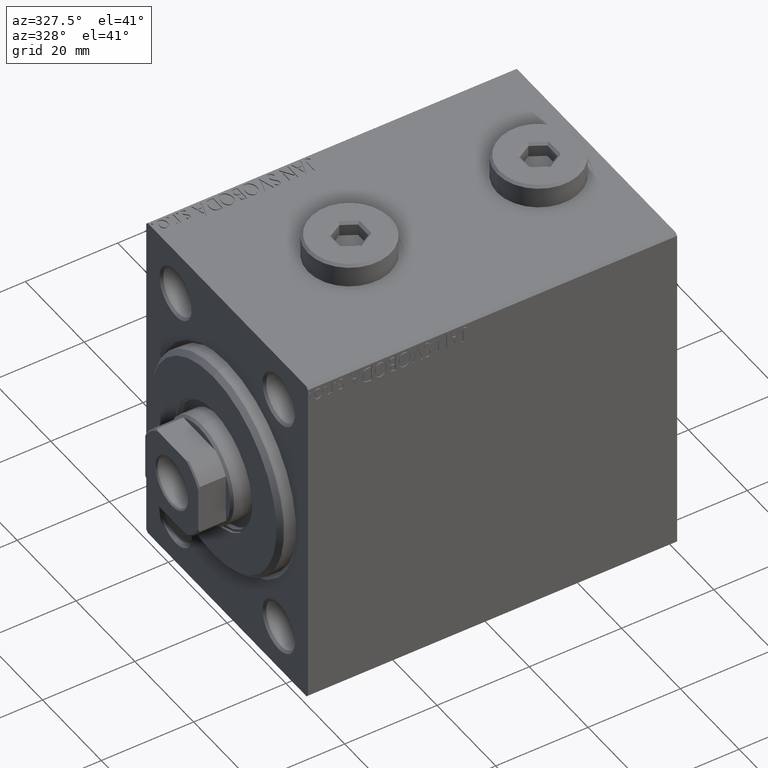
[diagram: clean part render]
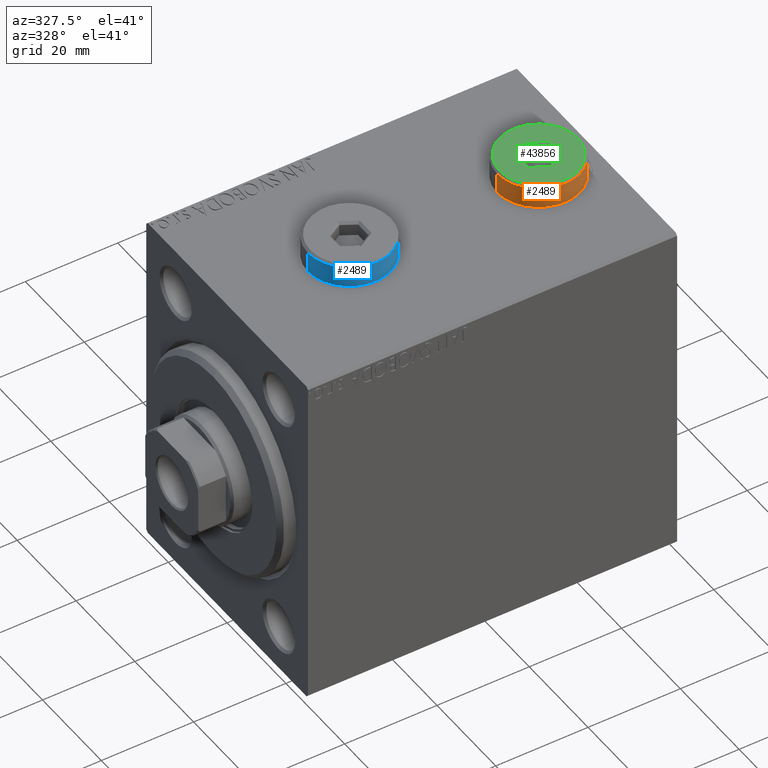
[diagram: same view with three faces highlighted in distinct colors, each labeled with its STEP entity id]
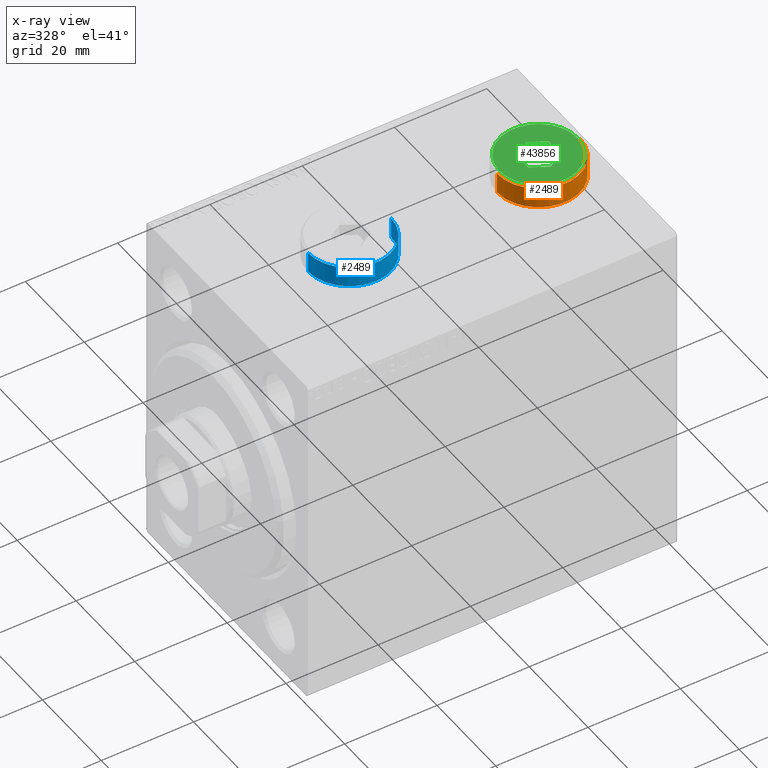
[diagram: x-ray of the same camera — body ghosted, the three highlighted faces saturated]
A machine part, auxiliary view with three faces highlighted in distinct colors.
The next image is the same camera in x-ray (body ghosted, the three faces saturated) — at least one of them is partly hidden behind the body in this view.
Their STEP definitions:

[orange] entity #2489 — the highlighted cylindrical surface (partial cylindrical patch) has radius 9 mm, axis along (-0, -0, -1).
#2489 = ADVANCED_FACE ( 'NONE', ( #18412 ), #3678, .T. ) ;
#2507 = LINE ( 'NONE', #44441, #35824 ) ;
#3678 = CYLINDRICAL_SURFACE ( 'NONE', #12824, 9.000000000000001776 ) ;
#3927 = DIRECTION ( 'NONE',  ( -0.000000000000000000, -0.000000000000000000, -1.000000000000000000 ) ) ;
#4153 = CARTESIAN_POINT ( 'NONE',  ( 0.000000000000000000, 0.000000000000000000, 4.500000000000006217 ) ) ;
#4491 = ORIENTED_EDGE ( 'NONE', *, *, #12279, .F. ) ;
#9756 = CARTESIAN_POINT ( 'NONE',  ( -9.000000000000001776, 0.000000000000000000, 4.500000000000006217 ) ) ;
#10621 = LINE ( 'NONE', #38980, #16836 ) ;
#12279 = EDGE_CURVE ( 'NONE', #29298, #26930, #2507, .T. ) ;
#12824 = AXIS2_PLACEMENT_3D ( 'NONE', #32462, #14949, #28988 ) ;
#14949 = DIRECTION ( 'NONE',  ( -0.000000000000000000, -0.000000000000000000, -1.000000000000000000 ) ) ;
#16563 = DIRECTION ( 'NONE',  ( -0.000000000000000000, -0.000000000000000000, -1.000000000000000000 ) ) ;
#16836 = VECTOR ( 'NONE', #3927, 1000.000000000000000 ) ;
#17232 = EDGE_CURVE ( 'NONE', #28300, #25426, #10621, .T. ) ;
#17346 = AXIS2_PLACEMENT_3D ( 'NONE', #33959, #41112, #43642 ) ;
#17738 = CARTESIAN_POINT ( 'NONE',  ( -9.000000000000001776, 0.000000000000000000, 0.000000000000000000 ) ) ;
#18209 = DIRECTION ( 'NONE',  ( 1.000000000000000000, 0.000000000000000000, 0.000000000000000000 ) ) ;
#18412 = FACE_OUTER_BOUND ( 'NONE', #31771, .T. ) ;
#21670 = ORIENTED_EDGE ( 'NONE', *, *, #34396, .T. ) ;
#23672 = ORIENTED_EDGE ( 'NONE', *, *, #17232, .T. ) ;
#25129 = DIRECTION ( 'NONE',  ( 0.000000000000000000, 0.000000000000000000, -1.000000000000000000 ) ) ;
#25426 = VERTEX_POINT ( 'NONE', #17738 ) ;
#26930 = VERTEX_POINT ( 'NONE', #44574 ) ;
#28300 = VERTEX_POINT ( 'NONE', #9756 ) ;
#28988 = DIRECTION ( 'NONE',  ( -1.000000000000000000, 0.000000000000000000, 0.000000000000000000 ) ) ;
#29298 = VERTEX_POINT ( 'NONE', #33728 ) ;
#29795 = EDGE_CURVE ( 'NONE', #29298, #28300, #31045, .T. ) ;
#31045 = CIRCLE ( 'NONE', #32485, 9.000000000000001776 ) ;
#31771 = EDGE_LOOP ( 'NONE', ( #4491, #43490, #23672, #21670 ) ) ;
#32462 = CARTESIAN_POINT ( 'NONE',  ( 0.000000000000000000, 0.000000000000000000, 5.000000000000000000 ) ) ;
#32485 = AXIS2_PLACEMENT_3D ( 'NONE', #4153, #25129, #18209 ) ;
#33728 = CARTESIAN_POINT ( 'NONE',  ( 9.000000000000001776, 1.102182119232617911E-15, 4.500000000000006217 ) ) ;
#33959 = CARTESIAN_POINT ( 'NONE',  ( 0.000000000000000000, 0.000000000000000000, 0.000000000000000000 ) ) ;
#34396 = EDGE_CURVE ( 'NONE', #25426, #26930, #37961, .T. ) ;
#35824 = VECTOR ( 'NONE', #16563, 1000.000000000000000 ) ;
#37961 = CIRCLE ( 'NONE', #17346, 9.000000000000001776 ) ;
#38980 = CARTESIAN_POINT ( 'NONE',  ( -9.000000000000001776, 0.000000000000000000, 5.000000000000000000 ) ) ;
#41112 = DIRECTION ( 'NONE',  ( 0.000000000000000000, 0.000000000000000000, 1.000000000000000000 ) ) ;
#43490 = ORIENTED_EDGE ( 'NONE', *, *, #29795, .T. ) ;
#43642 = DIRECTION ( 'NONE',  ( 1.000000000000000000, 0.000000000000000000, 0.000000000000000000 ) ) ;
#44441 = CARTESIAN_POINT ( 'NONE',  ( 9.000000000000001776, 1.102182119232617911E-15, 5.000000000000000000 ) ) ;
#44574 = CARTESIAN_POINT ( 'NONE',  ( 9.000000000000001776, 1.102182119232617911E-15, 0.000000000000000000 ) ) ;

[blue] entity #2489 — the highlighted cylindrical surface (partial cylindrical patch) has radius 9 mm, axis along (-0, -0, -1).
#2489 = ADVANCED_FACE ( 'NONE', ( #18412 ), #3678, .T. ) ;
#2507 = LINE ( 'NONE', #44441, #35824 ) ;
#3678 = CYLINDRICAL_SURFACE ( 'NONE', #12824, 9.000000000000001776 ) ;
#3927 = DIRECTION ( 'NONE',  ( -0.000000000000000000, -0.000000000000000000, -1.000000000000000000 ) ) ;
#4153 = CARTESIAN_POINT ( 'NONE',  ( 0.000000000000000000, 0.000000000000000000, 4.500000000000006217 ) ) ;
#4491 = ORIENTED_EDGE ( 'NONE', *, *, #12279, .F. ) ;
#9756 = CARTESIAN_POINT ( 'NONE',  ( -9.000000000000001776, 0.000000000000000000, 4.500000000000006217 ) ) ;
#10621 = LINE ( 'NONE', #38980, #16836 ) ;
#12279 = EDGE_CURVE ( 'NONE', #29298, #26930, #2507, .T. ) ;
#12824 = AXIS2_PLACEMENT_3D ( 'NONE', #32462, #14949, #28988 ) ;
#14949 = DIRECTION ( 'NONE',  ( -0.000000000000000000, -0.000000000000000000, -1.000000000000000000 ) ) ;
#16563 = DIRECTION ( 'NONE',  ( -0.000000000000000000, -0.000000000000000000, -1.000000000000000000 ) ) ;
#16836 = VECTOR ( 'NONE', #3927, 1000.000000000000000 ) ;
#17232 = EDGE_CURVE ( 'NONE', #28300, #25426, #10621, .T. ) ;
#17346 = AXIS2_PLACEMENT_3D ( 'NONE', #33959, #41112, #43642 ) ;
#17738 = CARTESIAN_POINT ( 'NONE',  ( -9.000000000000001776, 0.000000000000000000, 0.000000000000000000 ) ) ;
#18209 = DIRECTION ( 'NONE',  ( 1.000000000000000000, 0.000000000000000000, 0.000000000000000000 ) ) ;
#18412 = FACE_OUTER_BOUND ( 'NONE', #31771, .T. ) ;
#21670 = ORIENTED_EDGE ( 'NONE', *, *, #34396, .T. ) ;
#23672 = ORIENTED_EDGE ( 'NONE', *, *, #17232, .T. ) ;
#25129 = DIRECTION ( 'NONE',  ( 0.000000000000000000, 0.000000000000000000, -1.000000000000000000 ) ) ;
#25426 = VERTEX_POINT ( 'NONE', #17738 ) ;
#26930 = VERTEX_POINT ( 'NONE', #44574 ) ;
#28300 = VERTEX_POINT ( 'NONE', #9756 ) ;
#28988 = DIRECTION ( 'NONE',  ( -1.000000000000000000, 0.000000000000000000, 0.000000000000000000 ) ) ;
#29298 = VERTEX_POINT ( 'NONE', #33728 ) ;
#29795 = EDGE_CURVE ( 'NONE', #29298, #28300, #31045, .T. ) ;
#31045 = CIRCLE ( 'NONE', #32485, 9.000000000000001776 ) ;
#31771 = EDGE_LOOP ( 'NONE', ( #4491, #43490, #23672, #21670 ) ) ;
#32462 = CARTESIAN_POINT ( 'NONE',  ( 0.000000000000000000, 0.000000000000000000, 5.000000000000000000 ) ) ;
#32485 = AXIS2_PLACEMENT_3D ( 'NONE', #4153, #25129, #18209 ) ;
#33728 = CARTESIAN_POINT ( 'NONE',  ( 9.000000000000001776, 1.102182119232617911E-15, 4.500000000000006217 ) ) ;
#33959 = CARTESIAN_POINT ( 'NONE',  ( 0.000000000000000000, 0.000000000000000000, 0.000000000000000000 ) ) ;
#34396 = EDGE_CURVE ( 'NONE', #25426, #26930, #37961, .T. ) ;
#35824 = VECTOR ( 'NONE', #16563, 1000.000000000000000 ) ;
#37961 = CIRCLE ( 'NONE', #17346, 9.000000000000001776 ) ;
#38980 = CARTESIAN_POINT ( 'NONE',  ( -9.000000000000001776, 0.000000000000000000, 5.000000000000000000 ) ) ;
#41112 = DIRECTION ( 'NONE',  ( 0.000000000000000000, 0.000000000000000000, 1.000000000000000000 ) ) ;
#43490 = ORIENTED_EDGE ( 'NONE', *, *, #29795, .T. ) ;
#43642 = DIRECTION ( 'NONE',  ( 1.000000000000000000, 0.000000000000000000, 0.000000000000000000 ) ) ;
#44441 = CARTESIAN_POINT ( 'NONE',  ( 9.000000000000001776, 1.102182119232617911E-15, 5.000000000000000000 ) ) ;
#44574 = CARTESIAN_POINT ( 'NONE',  ( 9.000000000000001776, 1.102182119232617911E-15, 0.000000000000000000 ) ) ;

[green] entity #43856 — the highlighted planar face has unit normal (0, 0, 1).
#54 = CARTESIAN_POINT ( 'NONE',  ( 8.500000000000010658, 1.071565949253934716E-15, 5.000000000000000000 ) ) ;
#1057 = CARTESIAN_POINT ( 'NONE',  ( 0.000000000000000000, 0.000000000000000000, 5.000000000000000000 ) ) ;
#2242 = DIRECTION ( 'NONE',  ( -0.8660254037844387076, -0.4999999999999998890, 0.000000000000000000 ) ) ;
#3296 = CARTESIAN_POINT ( 'NONE',  ( -3.500000000000006661, 1.732050807568878081, 5.000000000000000000 ) ) ;
#3372 = ORIENTED_EDGE ( 'NONE', *, *, #31290, .T. ) ;
#4049 = DIRECTION ( 'NONE',  ( -0.8660254037844385966, 0.4999999999999999445, 0.000000000000000000 ) ) ;
#5408 = ORIENTED_EDGE ( 'NONE', *, *, #6587, .T. ) ;
#6587 = EDGE_CURVE ( 'NONE', #42310, #38538, #17886, .T. ) ;
#6597 = CARTESIAN_POINT ( 'NONE',  ( -8.500000000000010658, 0.000000000000000000, 5.000000000000000000 ) ) ;
#6820 = DIRECTION ( 'NONE',  ( 0.000000000000000000, -1.000000000000000000, 0.000000000000000000 ) ) ;
#8345 = ORIENTED_EDGE ( 'NONE', *, *, #16822, .T. ) ;
#8574 = CARTESIAN_POINT ( 'NONE',  ( 3.250000000000003109, 2.165063509461103042, 5.000000000000000000 ) ) ;
#9143 = ORIENTED_EDGE ( 'NONE', *, *, #45369, .T. ) ;
#9398 = VECTOR ( 'NONE', #6820, 1000.000000000000000 ) ;
#10064 = ORIENTED_EDGE ( 'NONE', *, *, #39701, .T. ) ;
#10877 = VECTOR ( 'NONE', #22635, 1000.000000000000000 ) ;
#11080 = CIRCLE ( 'NONE', #36841, 8.500000000000010658 ) ;
#11706 = VECTOR ( 'NONE', #2242, 1000.000000000000000 ) ;
#12388 = LINE ( 'NONE', #26672, #11706 ) ;
#12560 = PLANE ( 'NONE',  #32898 ) ;
#13722 = LINE ( 'NONE', #41618, #9398 ) ;
#13994 = DIRECTION ( 'NONE',  ( 1.000000000000000000, 0.000000000000000000, 0.000000000000000000 ) ) ;
#14611 = LINE ( 'NONE', #25206, #29570 ) ;
#14930 = EDGE_CURVE ( 'NONE', #30418, #34832, #40149, .T. ) ;
#15353 = VECTOR ( 'NONE', #27506, 1000.000000000000000 ) ;
#16387 = CARTESIAN_POINT ( 'NONE',  ( 3.500000000000006661, 2.020725942163694722, 5.000000000000000000 ) ) ;
#16822 = EDGE_CURVE ( 'NONE', #38538, #43615, #24288, .T. ) ;
#16992 = CARTESIAN_POINT ( 'NONE',  ( 0.000000000000000000, 0.000000000000000000, 5.000000000000000000 ) ) ;
#17385 = DIRECTION ( 'NONE',  ( 0.000000000000000000, 0.000000000000000000, 1.000000000000000000 ) ) ;
#17886 = LINE ( 'NONE', #31937, #23984 ) ;
#18068 = EDGE_CURVE ( 'NONE', #27002, #42310, #12388, .T. ) ;
#19563 = VERTEX_POINT ( 'NONE', #54 ) ;
#20682 = DIRECTION ( 'NONE',  ( 0.000000000000000000, 0.000000000000000000, 1.000000000000000000 ) ) ;
#22635 = DIRECTION ( 'NONE',  ( 0.8660254037844387076, -0.4999999999999998890, 0.000000000000000000 ) ) ;
#23984 = VECTOR ( 'NONE', #4049, 1000.000000000000114 ) ;
#24288 = LINE ( 'NONE', #3296, #15353 ) ;
#24683 = ORIENTED_EDGE ( 'NONE', *, *, #26689, .T. ) ;
#24986 = DIRECTION ( 'NONE',  ( 0.8660254037844387076, 0.4999999999999998335, 0.000000000000000000 ) ) ;
#25206 = CARTESIAN_POINT ( 'NONE',  ( -0.2500000000000027756, 3.897114317029978459, 5.000000000000000000 ) ) ;
#26672 = CARTESIAN_POINT ( 'NONE',  ( 0.2500000000000027756, -3.897114317029979347, 5.000000000000000000 ) ) ;
#26689 = EDGE_CURVE ( 'NONE', #28011, #19563, #11080, .T. ) ;
#26985 = CARTESIAN_POINT ( 'NONE',  ( -1.006139216460143630E-15, -4.041451884327387667, 5.000000000000000000 ) ) ;
#27002 = VERTEX_POINT ( 'NONE', #27761 ) ;
#27506 = DIRECTION ( 'NONE',  ( 0.000000000000000000, 1.000000000000000000, 0.000000000000000000 ) ) ;
#27761 = CARTESIAN_POINT ( 'NONE',  ( 3.500000000000006661, -2.020725942163693833, 5.000000000000000000 ) ) ;
#28011 = VERTEX_POINT ( 'NONE', #6597 ) ;
#29570 = VECTOR ( 'NONE', #24986, 1000.000000000000000 ) ;
#29624 = DIRECTION ( 'NONE',  ( 1.000000000000000000, 0.000000000000000000, 0.000000000000000000 ) ) ;
#30018 = AXIS2_PLACEMENT_3D ( 'NONE', #1057, #32860, #29624 ) ;
#30060 = FACE_OUTER_BOUND ( 'NONE', #41305, .T. ) ;
#30418 = VERTEX_POINT ( 'NONE', #33683 ) ;
#31290 = EDGE_CURVE ( 'NONE', #43615, #30418, #14611, .T. ) ;
#31740 = CARTESIAN_POINT ( 'NONE',  ( -3.500000000000006661, -2.020725942163694278, 5.000000000000000000 ) ) ;
#31937 = CARTESIAN_POINT ( 'NONE',  ( -3.250000000000003109, -2.165063509461102598, 5.000000000000000000 ) ) ;
#32432 = ORIENTED_EDGE ( 'NONE', *, *, #14930, .T. ) ;
#32860 = DIRECTION ( 'NONE',  ( 0.000000000000000000, 0.000000000000000000, 1.000000000000000000 ) ) ;
#32898 = AXIS2_PLACEMENT_3D ( 'NONE', #40685, #17385, #41375 ) ;
#33601 = ORIENTED_EDGE ( 'NONE', *, *, #18068, .T. ) ;
#33683 = CARTESIAN_POINT ( 'NONE',  ( 1.590596867181068292E-15, 4.041451884327386779, 5.000000000000000000 ) ) ;
#34832 = VERTEX_POINT ( 'NONE', #16387 ) ;
#36841 = AXIS2_PLACEMENT_3D ( 'NONE', #16992, #20682, #13994 ) ;
#38538 = VERTEX_POINT ( 'NONE', #31740 ) ;
#39701 = EDGE_CURVE ( 'NONE', #34832, #27002, #13722, .T. ) ;
#40149 = LINE ( 'NONE', #8574, #10877 ) ;
#40685 = CARTESIAN_POINT ( 'NONE',  ( 0.000000000000000000, 0.000000000000000000, 5.000000000000000000 ) ) ;
#41305 = EDGE_LOOP ( 'NONE', ( #24683, #9143 ) ) ;
#41375 = DIRECTION ( 'NONE',  ( 1.000000000000000000, 0.000000000000000000, -0.000000000000000000 ) ) ;
#41618 = CARTESIAN_POINT ( 'NONE',  ( 3.500000000000006661, -1.732050807568878303, 5.000000000000000000 ) ) ;
#42144 = EDGE_LOOP ( 'NONE', ( #8345, #3372, #32432, #10064, #33601, #5408 ) ) ;
#42310 = VERTEX_POINT ( 'NONE', #26985 ) ;
#42554 = CIRCLE ( 'NONE', #30018, 8.500000000000010658 ) ;
#43615 = VERTEX_POINT ( 'NONE', #45328 ) ;
#43856 = ADVANCED_FACE ( 'NONE', ( #44132, #30060 ), #12560, .T. ) ;
#44132 = FACE_BOUND ( 'NONE', #42144, .T. ) ;
#45328 = CARTESIAN_POINT ( 'NONE',  ( -3.500000000000006661, 2.020725942163692945, 5.000000000000000000 ) ) ;
#45369 = EDGE_CURVE ( 'NONE', #19563, #28011, #42554, .T. ) ;